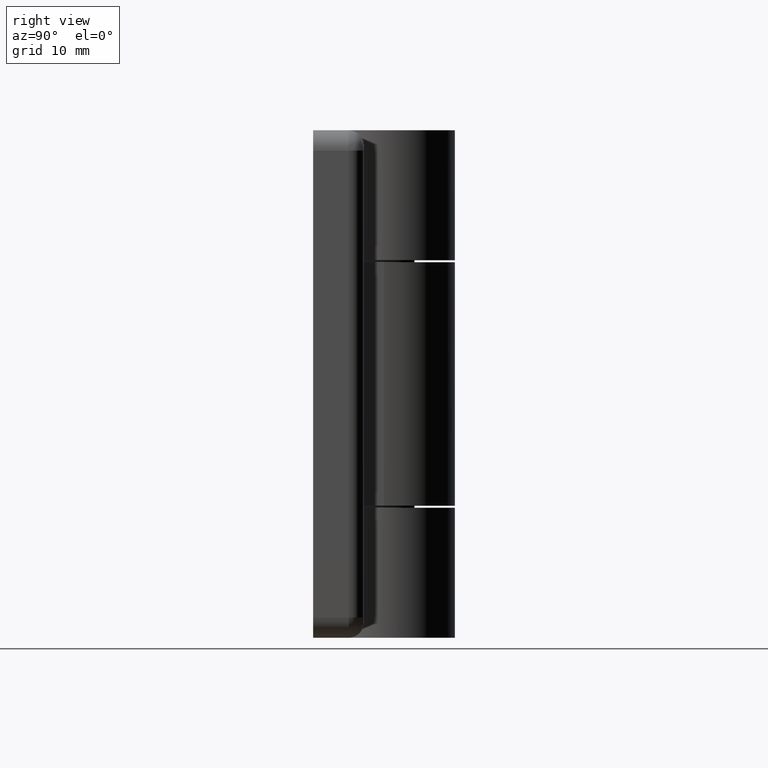
[diagram: clean part render]
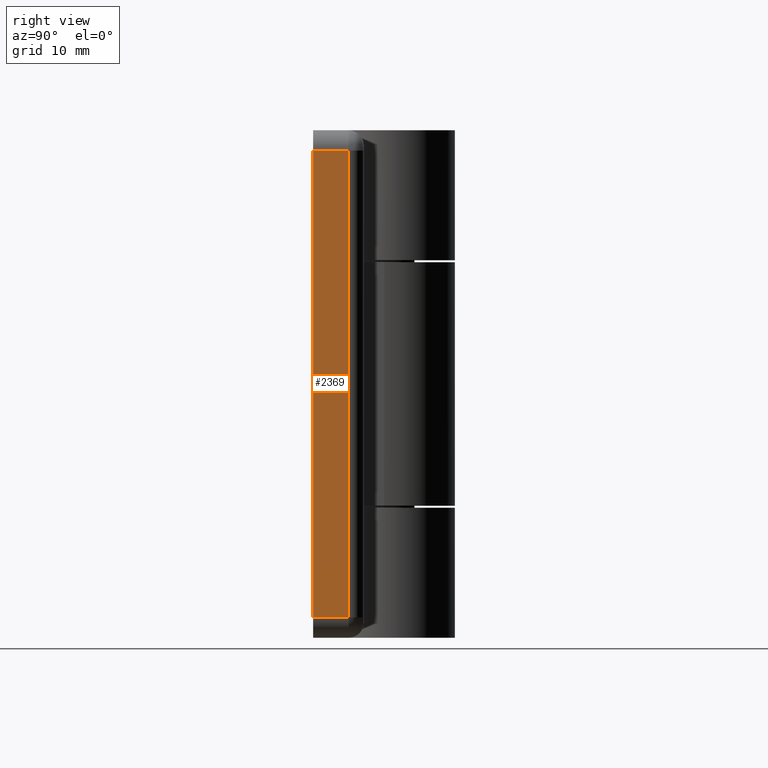
[diagram: same view with one face highlighted and labeled with its STEP entity id]
A machine part, right view. The second image highlights one B-rep face of the part: STEP entity #2369.
In plain terms, the highlighted planar face has unit normal (1, 0, 0).
Its self-contained STEP definition (entity closure, byte-faithful):
#115=PLANE('',#2673);
#293=FACE_OUTER_BOUND('',#469,.T.);
#469=EDGE_LOOP('',(#2153,#2154,#2155,#2156));
#602=LINE('',#4354,#755);
#605=LINE('',#4365,#758);
#608=LINE('',#4372,#761);
#630=LINE('',#4422,#783);
#755=VECTOR('',#3362,46.);
#758=VECTOR('',#3373,3.5);
#761=VECTOR('',#3380,3.5);
#783=VECTOR('',#3430,46.);
#1140=VERTEX_POINT('',#4330);
#1142=VERTEX_POINT('',#4344);
#1149=VERTEX_POINT('',#4363);
#1150=VERTEX_POINT('',#4368);
#1462=EDGE_CURVE('',#1142,#1140,#602,.T.);
#1467=EDGE_CURVE('',#1149,#1142,#605,.T.);
#1471=EDGE_CURVE('',#1140,#1150,#608,.T.);
#1496=EDGE_CURVE('',#1150,#1149,#630,.T.);
#2153=ORIENTED_EDGE('',*,*,#1467,.F.);
#2154=ORIENTED_EDGE('',*,*,#1496,.F.);
#2155=ORIENTED_EDGE('',*,*,#1471,.F.);
#2156=ORIENTED_EDGE('',*,*,#1462,.F.);
#2369=ADVANCED_FACE('',(#293),#115,.T.);
#2673=AXIS2_PLACEMENT_3D('',#4423,#3431,#3432);
#3362=DIRECTION('',(0.,0.,1.));
#3373=DIRECTION('',(0.,1.,0.));
#3380=DIRECTION('',(0.,-1.,0.));
#3430=DIRECTION('',(0.,0.,-1.));
#3431=DIRECTION('center_axis',(-1.,0.,0.));
#3432=DIRECTION('ref_axis',(0.,0.,1.));
#4330=CARTESIAN_POINT('',(-25.,-3.5,23.));
#4344=CARTESIAN_POINT('',(-25.,-3.5,-23.));
#4354=CARTESIAN_POINT('',(-25.,-3.5,0.));
#4363=CARTESIAN_POINT('',(-25.,-7.,-23.));
#4365=CARTESIAN_POINT('',(-25.,-4.7187354638398,-23.));
#4368=CARTESIAN_POINT('',(-25.,-7.,23.));
#4372=CARTESIAN_POINT('',(-25.,-4.7187354638398,23.));
#4422=CARTESIAN_POINT('',(-25.,-7.,0.));
#4423=CARTESIAN_POINT('Origin',(-25.,-7.,0.));